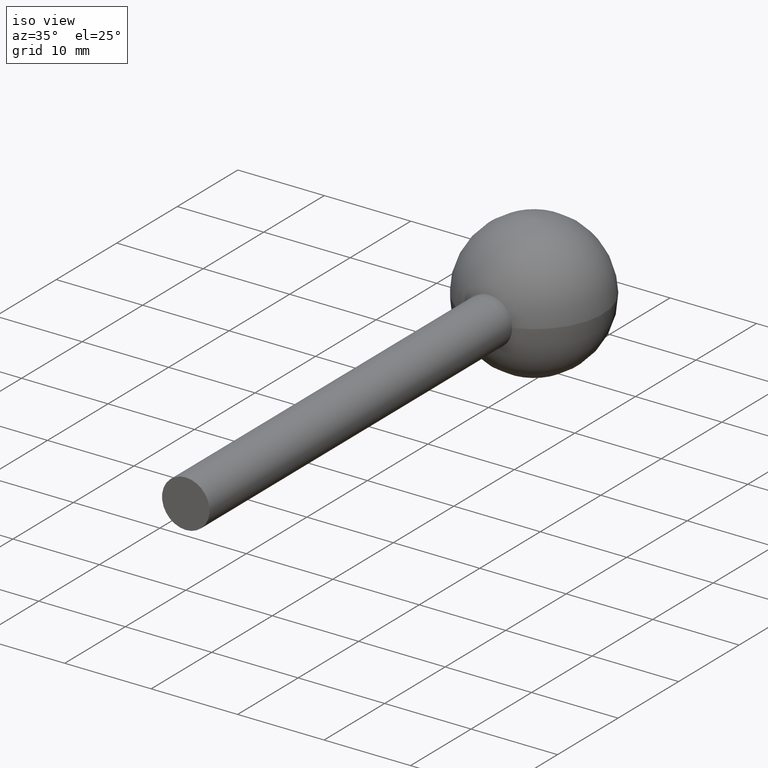
[diagram: clean part render]
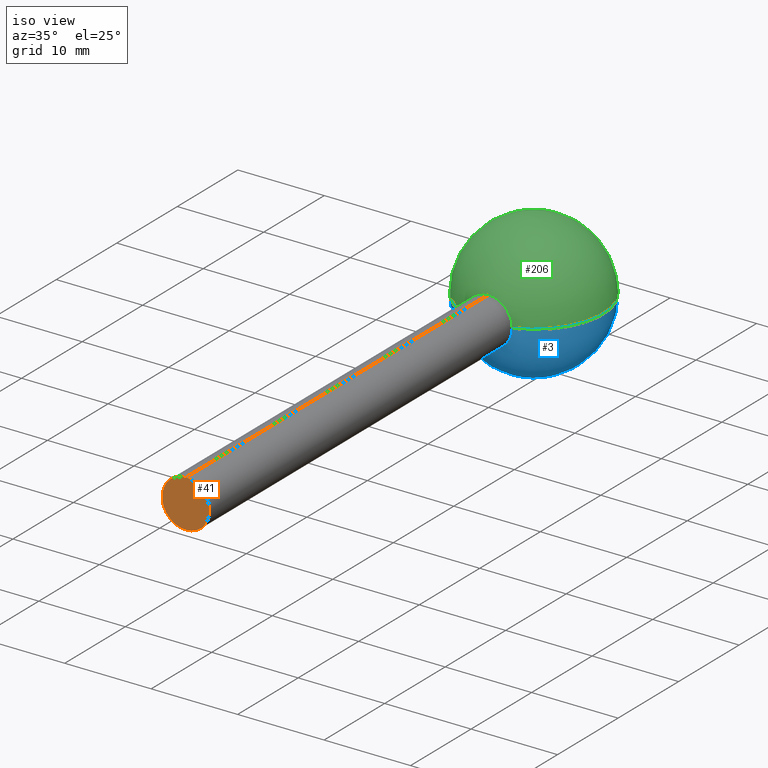
[diagram: same view with three faces highlighted in distinct colors, each labeled with its STEP entity id]
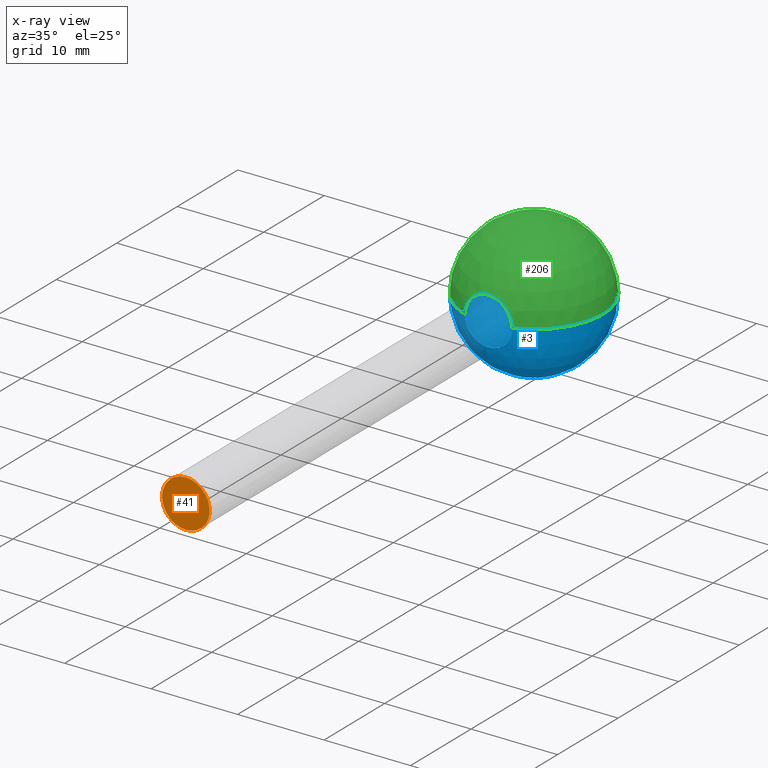
[diagram: x-ray of the same camera — body ghosted, the three highlighted faces saturated]
A machine part, iso view with three faces highlighted in distinct colors.
The next image is the same camera in x-ray (body ghosted, the three faces saturated) — at least one of them is partly hidden behind the body in this view.
Their STEP definitions:

[orange] entity #41 — the highlighted planar face has unit normal (0, 1, 0).
#14 = EDGE_CURVE ( 'NONE', #164, #171, #85, .T. ) ;
#34 = ORIENTED_EDGE ( 'NONE', *, *, #158, .T. ) ;
#41 = ADVANCED_FACE ( 'NONE', ( #117 ), #213, .F. ) ;
#46 = AXIS2_PLACEMENT_3D ( 'NONE', #220, #196, #74 ) ;
#50 = ORIENTED_EDGE ( 'NONE', *, *, #14, .T. ) ;
#74 = DIRECTION ( 'NONE',  ( 0.0000000000000000000, 0.0000000000000000000, -1.000000000000000000 ) ) ;
#81 = AXIS2_PLACEMENT_3D ( 'NONE', #207, #205, #204 ) ;
#85 = CIRCLE ( 'NONE', #46, 2.750000000000000000 ) ;
#117 = FACE_OUTER_BOUND ( 'NONE', #215, .T. ) ;
#138 = DIRECTION ( 'NONE',  ( 0.0000000000000000000, 0.0000000000000000000, -1.000000000000000000 ) ) ;
#140 = DIRECTION ( 'NONE',  ( -0.0000000000000000000, -1.000000000000000000, -0.0000000000000000000 ) ) ;
#142 = CARTESIAN_POINT ( 'NONE',  ( 0.0000000000000000000, -3.367778697655221000E-016, 0.0000000000000000000 ) ) ;
#147 = CARTESIAN_POINT ( 'NONE',  ( 0.0000000000000000000, -3.367778697655221000E-016, -2.750000000000000000 ) ) ;
#158 = EDGE_CURVE ( 'NONE', #171, #164, #198, .T. ) ;
#164 = VERTEX_POINT ( 'NONE', #178 ) ;
#171 = VERTEX_POINT ( 'NONE', #147 ) ;
#178 = CARTESIAN_POINT ( 'NONE',  ( 3.367778697655221500E-016, -3.367778697655221000E-016, 2.750000000000000000 ) ) ;
#196 = DIRECTION ( 'NONE',  ( -0.0000000000000000000, -1.000000000000000000, -0.0000000000000000000 ) ) ;
#198 = CIRCLE ( 'NONE', #217, 2.750000000000000000 ) ;
#204 = DIRECTION ( 'NONE',  ( 0.0000000000000000000, -0.0000000000000000000, 1.000000000000000000 ) ) ;
#205 = DIRECTION ( 'NONE',  ( 0.0000000000000000000, 1.000000000000000000, 0.0000000000000000000 ) ) ;
#207 = CARTESIAN_POINT ( 'NONE',  ( 0.0000000000000000000, -1.683889348827610500E-016, 0.0000000000000000000 ) ) ;
#213 = PLANE ( 'NONE',  #81 ) ;
#215 = EDGE_LOOP ( 'NONE', ( #34, #50 ) ) ;
#217 = AXIS2_PLACEMENT_3D ( 'NONE', #142, #140, #138 ) ;
#220 = CARTESIAN_POINT ( 'NONE',  ( 0.0000000000000000000, -3.367778697655221000E-016, 0.0000000000000000000 ) ) ;

[blue] entity #3 — the highlighted spherical surface has radius 8 mm.
#3 = ADVANCED_FACE ( 'NONE', ( #18 ), #114, .T. ) ;
#8 = VERTEX_POINT ( 'NONE', #91 ) ;
#16 = EDGE_LOOP ( 'NONE', ( #221, #36, #200, #35 ) ) ;
#18 = FACE_OUTER_BOUND ( 'NONE', #16, .T. ) ;
#22 = VERTEX_POINT ( 'NONE', #219 ) ;
#23 = AXIS2_PLACEMENT_3D ( 'NONE', #188, #184, #180 ) ;
#29 = VERTEX_POINT ( 'NONE', #218 ) ;
#35 = ORIENTED_EDGE ( 'NONE', *, *, #177, .F. ) ;
#36 = ORIENTED_EDGE ( 'NONE', *, *, #149, .T. ) ;
#40 = CIRCLE ( 'NONE', #55, 8.000000000000000000 ) ;
#47 = AXIS2_PLACEMENT_3D ( 'NONE', #175, #168, #157 ) ;
#55 = AXIS2_PLACEMENT_3D ( 'NONE', #154, #150, #148 ) ;
#58 = EDGE_CURVE ( 'NONE', #22, #29, #193, .T. ) ;
#65 = AXIS2_PLACEMENT_3D ( 'NONE', #108, #132, #185 ) ;
#91 = CARTESIAN_POINT ( 'NONE',  ( -4.898587196589412800E-016, 65.51248960065837000, 0.0000000000000000000 ) ) ;
#97 = DIRECTION ( 'NONE',  ( 0.0000000000000000000, 0.0000000000000000000, -1.000000000000000000 ) ) ;
#98 = DIRECTION ( 'NONE',  ( -0.0000000000000000000, -1.000000000000000000, -0.0000000000000000000 ) ) ;
#99 = CARTESIAN_POINT ( 'NONE',  ( 0.0000000000000000000, 50.00000000000000000, 0.0000000000000000000 ) ) ;
#108 = CARTESIAN_POINT ( 'NONE',  ( 0.0000000000000000000, 57.51248960065836300, 0.0000000000000000000 ) ) ;
#114 = SPHERICAL_SURFACE ( 'NONE', #65, 8.000000000000000000 ) ;
#122 = VERTEX_POINT ( 'NONE', #199 ) ;
#127 = EDGE_CURVE ( 'NONE', #8, #122, #195, .T. ) ;
#132 = DIRECTION ( 'NONE',  ( -0.0000000000000000000, -0.0000000000000000000, -1.000000000000000000 ) ) ;
#148 = DIRECTION ( 'NONE',  ( -1.000000000000000000, 0.0000000000000000000, 1.224646799147353200E-016 ) ) ;
#149 = EDGE_CURVE ( 'NONE', #8, #29, #40, .T. ) ;
#150 = DIRECTION ( 'NONE',  ( -1.224646799147353200E-016, 0.0000000000000000000, -1.000000000000000000 ) ) ;
#154 = CARTESIAN_POINT ( 'NONE',  ( 0.0000000000000000000, 57.51248960065836300, 0.0000000000000000000 ) ) ;
#157 = DIRECTION ( 'NONE',  ( 1.000000000000000000, 0.0000000000000000000, 0.0000000000000000000 ) ) ;
#168 = DIRECTION ( 'NONE',  ( -0.0000000000000000000, 0.0000000000000000000, 1.000000000000000000 ) ) ;
#175 = CARTESIAN_POINT ( 'NONE',  ( 0.0000000000000000000, 57.51248960065836300, 0.0000000000000000000 ) ) ;
#177 = EDGE_CURVE ( 'NONE', #122, #22, #190, .T. ) ;
#180 = DIRECTION ( 'NONE',  ( 0.0000000000000000000, 0.0000000000000000000, -1.000000000000000000 ) ) ;
#184 = DIRECTION ( 'NONE',  ( -0.0000000000000000000, -1.000000000000000000, -0.0000000000000000000 ) ) ;
#185 = DIRECTION ( 'NONE',  ( -1.000000000000000000, 0.0000000000000000000, 0.0000000000000000000 ) ) ;
#187 = AXIS2_PLACEMENT_3D ( 'NONE', #99, #98, #97 ) ;
#188 = CARTESIAN_POINT ( 'NONE',  ( 0.0000000000000000000, 50.00000000000000000, 0.0000000000000000000 ) ) ;
#190 = CIRCLE ( 'NONE', #187, 2.750000000000002700 ) ;
#193 = CIRCLE ( 'NONE', #23, 2.750000000000002700 ) ;
#195 = CIRCLE ( 'NONE', #47, 8.000000000000000000 ) ;
#199 = CARTESIAN_POINT ( 'NONE',  ( -2.750000000000000000, 50.00000000000000000, 0.0000000000000000000 ) ) ;
#200 = ORIENTED_EDGE ( 'NONE', *, *, #58, .F. ) ;
#218 = CARTESIAN_POINT ( 'NONE',  ( 2.750000000000000000, 50.00000000000000000, -3.367778697655221500E-016 ) ) ;
#219 = CARTESIAN_POINT ( 'NONE',  ( 0.0000000000000000000, 50.00000000000000000, -2.750000000000002700 ) ) ;
#221 = ORIENTED_EDGE ( 'NONE', *, *, #127, .F. ) ;

[green] entity #206 — the highlighted spherical surface has radius 8 mm.
#8 = VERTEX_POINT ( 'NONE', #91 ) ;
#19 = EDGE_CURVE ( 'NONE', #145, #122, #160, .T. ) ;
#26 = ORIENTED_EDGE ( 'NONE', *, *, #162, .F. ) ;
#29 = VERTEX_POINT ( 'NONE', #218 ) ;
#30 = EDGE_LOOP ( 'NONE', ( #163, #202, #32, #26 ) ) ;
#32 = ORIENTED_EDGE ( 'NONE', *, *, #19, .F. ) ;
#40 = CIRCLE ( 'NONE', #55, 8.000000000000000000 ) ;
#47 = AXIS2_PLACEMENT_3D ( 'NONE', #175, #168, #157 ) ;
#55 = AXIS2_PLACEMENT_3D ( 'NONE', #154, #150, #148 ) ;
#70 = DIRECTION ( 'NONE',  ( -0.0000000000000000000, -1.000000000000000000, -0.0000000000000000000 ) ) ;
#86 = AXIS2_PLACEMENT_3D ( 'NONE', #105, #70, #182 ) ;
#91 = CARTESIAN_POINT ( 'NONE',  ( -4.898587196589412800E-016, 65.51248960065837000, 0.0000000000000000000 ) ) ;
#96 = DIRECTION ( 'NONE',  ( -1.000000000000000000, 0.0000000000000000000, 0.0000000000000000000 ) ) ;
#101 = DIRECTION ( 'NONE',  ( -0.0000000000000000000, -0.0000000000000000000, -1.000000000000000000 ) ) ;
#105 = CARTESIAN_POINT ( 'NONE',  ( 0.0000000000000000000, 50.00000000000000000, 0.0000000000000000000 ) ) ;
#107 = DIRECTION ( 'NONE',  ( 0.0000000000000000000, 0.0000000000000000000, -1.000000000000000000 ) ) ;
#120 = DIRECTION ( 'NONE',  ( -0.0000000000000000000, -1.000000000000000000, -0.0000000000000000000 ) ) ;
#122 = VERTEX_POINT ( 'NONE', #199 ) ;
#126 = CARTESIAN_POINT ( 'NONE',  ( 0.0000000000000000000, 50.00000000000000000, 0.0000000000000000000 ) ) ;
#127 = EDGE_CURVE ( 'NONE', #8, #122, #195, .T. ) ;
#134 = CARTESIAN_POINT ( 'NONE',  ( 0.0000000000000000000, 57.51248960065836300, 0.0000000000000000000 ) ) ;
#145 = VERTEX_POINT ( 'NONE', #189 ) ;
#148 = DIRECTION ( 'NONE',  ( -1.000000000000000000, 0.0000000000000000000, 1.224646799147353200E-016 ) ) ;
#149 = EDGE_CURVE ( 'NONE', #8, #29, #40, .T. ) ;
#150 = DIRECTION ( 'NONE',  ( -1.224646799147353200E-016, 0.0000000000000000000, -1.000000000000000000 ) ) ;
#154 = CARTESIAN_POINT ( 'NONE',  ( 0.0000000000000000000, 57.51248960065836300, 0.0000000000000000000 ) ) ;
#157 = DIRECTION ( 'NONE',  ( 1.000000000000000000, 0.0000000000000000000, 0.0000000000000000000 ) ) ;
#160 = CIRCLE ( 'NONE', #86, 2.750000000000002700 ) ;
#162 = EDGE_CURVE ( 'NONE', #29, #145, #194, .T. ) ;
#163 = ORIENTED_EDGE ( 'NONE', *, *, #149, .F. ) ;
#168 = DIRECTION ( 'NONE',  ( -0.0000000000000000000, 0.0000000000000000000, 1.000000000000000000 ) ) ;
#175 = CARTESIAN_POINT ( 'NONE',  ( 0.0000000000000000000, 57.51248960065836300, 0.0000000000000000000 ) ) ;
#176 = AXIS2_PLACEMENT_3D ( 'NONE', #134, #101, #96 ) ;
#182 = DIRECTION ( 'NONE',  ( 0.0000000000000000000, 0.0000000000000000000, -1.000000000000000000 ) ) ;
#183 = FACE_OUTER_BOUND ( 'NONE', #30, .T. ) ;
#189 = CARTESIAN_POINT ( 'NONE',  ( 3.367778697655224000E-016, 50.00000000000000000, 2.750000000000002700 ) ) ;
#191 = SPHERICAL_SURFACE ( 'NONE', #176, 8.000000000000000000 ) ;
#194 = CIRCLE ( 'NONE', #208, 2.750000000000002700 ) ;
#195 = CIRCLE ( 'NONE', #47, 8.000000000000000000 ) ;
#199 = CARTESIAN_POINT ( 'NONE',  ( -2.750000000000000000, 50.00000000000000000, 0.0000000000000000000 ) ) ;
#202 = ORIENTED_EDGE ( 'NONE', *, *, #127, .T. ) ;
#206 = ADVANCED_FACE ( 'NONE', ( #183 ), #191, .T. ) ;
#208 = AXIS2_PLACEMENT_3D ( 'NONE', #126, #120, #107 ) ;
#218 = CARTESIAN_POINT ( 'NONE',  ( 2.750000000000000000, 50.00000000000000000, -3.367778697655221500E-016 ) ) ;